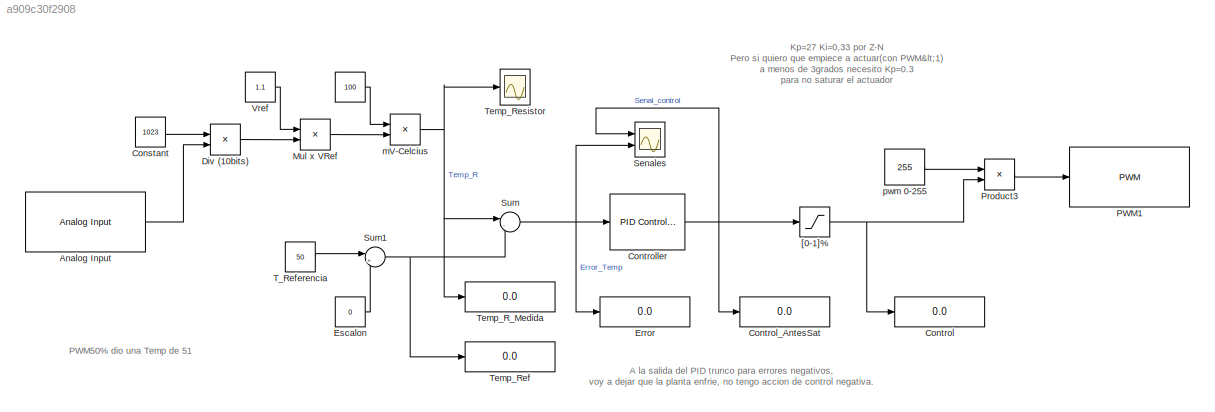
MODEL slx_a909c30f2908
KIND model
CONFIG AbsTol = auto
CONFIG EnableMultiTasking = on
CONFIG FixedStep = auto
CONFIG MaxStep = auto
CONFIG MinStep = auto
CONFIG RelTol = 1e-3
CONFIG SampleTimeConstraint = Unconstrained
CONFIG Solver = FixedStepAuto
CONFIG SolverName = FixedStepAuto
CONFIG StartTime = 0.0
CONFIG StopTime = inf
BLOCK [Constant]  
  Value = 100
BLOCK [Reference]  Controller  REF=simulink/Continuous/PID Controller
  Ports = [1, 1]
  SourceBlock = simulink/Continuous/PID Controller
  SourceProductBaseCode = SL
  SourceProductName = Simulink
  SourceType = PID 1dof
BLOCK [Constant]  Escalon 
  Value = 0
BLOCK [Constant]  T_Referencia 
  Value = 50
BLOCK [Constant]  Vref 
  Value = 1.1
BLOCK [Constant]  pwm 0-255
  Value = 255
BLOCK [Reference] Analog Input  REF=arduinolib/Analog Input
  Ports = [0, 1]
  SourceBlock = arduinolib/Analog Input
  SourceProductBaseCode = ARDUINO
  SourceProductName = Simulink Support Package for Arduino Hardware
  SourceType = Arduino Analog Input
BLOCK [Constant] Constant
  Value = 1023
BLOCK [Display] Control
  Decimation = 2
  Ports = [1]
BLOCK [Display] Control_AntesSat
  Decimation = 2
  Ports = [1]
BLOCK [Product] Div (10bits)
  InputSameDT = off
  Inputs = /*
  OutDataTypeStr = Inherit: Inherit via internal rule
  Ports = [2, 1]
  RndMeth = Floor
  SaturateOnIntegerOverflow = off
BLOCK [Display] Error
  Decimation = 2
  Ports = [1]
BLOCK [Product] Mul x VRef
  InputSameDT = off
  OutDataTypeStr = Inherit: Inherit via internal rule
  Ports = [2, 1]
  RndMeth = Floor
  SaturateOnIntegerOverflow = off
BLOCK [Reference] PWM1  REF=arduinolib/PWM
  Ports = [1]
  SourceBlock = arduinolib/PWM
  SourceProductBaseCode = ARDUINO
  SourceProductName = Simulink Support Package for Arduino Hardware
  SourceType = Arduino PWM
BLOCK [Product] Product3
  InputSameDT = off
  OutDataTypeStr = Inherit: Inherit via internal rule
  Ports = [2, 1]
  RndMeth = Floor
  SaturateOnIntegerOverflow = off
BLOCK [Scope] Senales 
  NumInputPorts = 2
  Ports = [2]
  ScopeSpecificationString = Simulink.scopes.TimeScopeBlockCfg('CurrentConfiguration', extmgr.ConfigurationSet(extmgr.Configuration('Core','General UI',true,'FigureColor',[1 1 1]),extmgr.Configuration('Core','Source UI',true),extmgr.Configuration('Sources','WiredSimulink',true,'DataLoggingVariableName','ScopeData1'),extmgr.Configuration('Visuals','Time Domain',true,'SerializedDisplays',{struct('MinYLimReal','-1','MaxYLimReal'...<+1707ch>
BLOCK [Sum] Sum
  IconShape = round
  InputSameDT = off
  Inputs = |-+
  OutDataTypeStr = Inherit: Inherit via internal rule
  Ports = [2, 1]
  SaturateOnIntegerOverflow = off
BLOCK [Sum] Sum1
  IconShape = round
  InputSameDT = off
  Inputs = |++
  OutDataTypeStr = Inherit: Inherit via internal rule
  Ports = [2, 1]
  SaturateOnIntegerOverflow = off
BLOCK [Display] Temp_R_Medida
  Decimation = 2
  Ports = [1]
BLOCK [Display] Temp_Ref
  Decimation = 2
  Format = decimal (Stored Integer)
  Ports = [1]
BLOCK [Scope] Temp_Resistor
  NumInputPorts = 1
  Ports = [1]
  ScopeSpecificationString = Simulink.scopes.TimeScopeBlockCfg('CurrentConfiguration', extmgr.ConfigurationSet(extmgr.Configuration('Core','General UI',true,'FigureColor',[1 1 1]),extmgr.Configuration('Core','Source UI',true),extmgr.Configuration('Sources','WiredSimulink',true,'DataLoggingVariableName','Scope_LazoCerrado_KP01_KI00001','DataLogging',true,'DataLoggingSaveFormat','StructureWithTime'),extmgr.Configuration('Visual...<+1901ch>
BLOCK [Saturate] [0-1]%
  InputPortMap = u0
  LowerLimit = 0
  Ports = [1, 1]
  UpperLimit = 1
BLOCK [Product] mV-Celcius
  InputSameDT = off
  OutDataTypeStr = Inherit: Inherit via internal rule
  Ports = [2, 1]
  RndMeth = Floor
  SaturateOnIntegerOverflow = off
ANNOTATION (root): PWM50% dio una Temp de 51
ANNOTATION (root): Kp=27 Ki=0,33 por Z-N Pero si quiero que empiece a actuar(con PWM<1) a menos de 3grados necesito Kp=0.3 para no saturar el actuador
ANNOTATION (root): A la salida del PID trunco para errores negativos, voy a dejar que la planta enfrie, no tengo accion de control negativa.
LINE  :1 -> mV-Celcius:1
NET  Controller:1 -> Control_AntesSat:1, Senales :1, [0-1]%:1
LINE  Escalon :1 -> Sum1:2
LINE  T_Referencia :1 -> Sum1:1
LINE  Vref :1 -> Mul x VRef:1
LINE  pwm 0-255:1 -> Product3:1
LINE Analog Input:1 -> Div (10bits):2
LINE Constant:1 -> Div (10bits):1
LINE Div (10bits):1 -> Mul x VRef:2
LINE Mul x VRef:1 -> mV-Celcius:2
LINE Product3:1 -> PWM1:1
NET Sum1:1 -> Sum:2, Temp_Ref:1
NET Sum:1 ->  Controller:1, Error:1, Senales :2
NET [0-1]%:1 -> Control:1, Product3:2
NET mV-Celcius:1 -> Sum:1, Temp_R_Medida:1, Temp_Resistor:1
note: NET lines group one-source signal fan-out (src -> all destinations, sorted); 1:1 wires keep LINE
